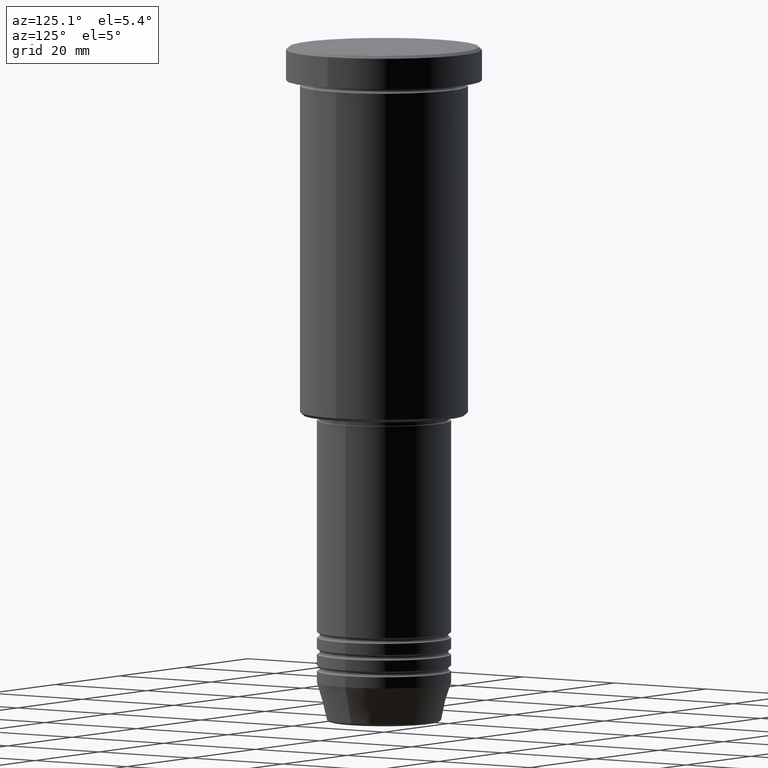
[diagram: clean part render]
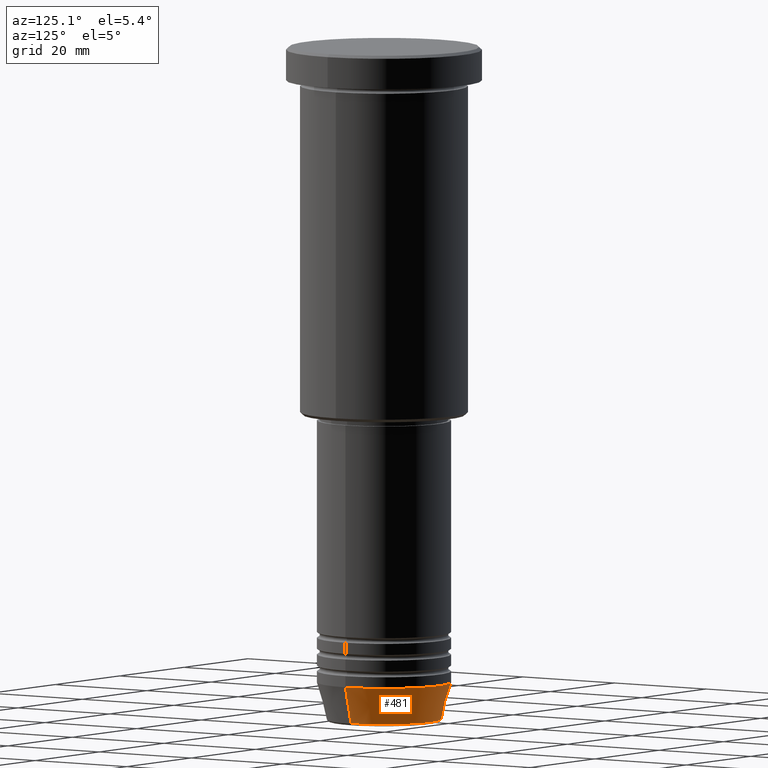
[diagram: same view with one face highlighted and labeled with its STEP entity id]
A machine part, auxiliary view. The second image highlights one B-rep face of the part: STEP entity #481.
In plain terms, the highlighted conical surface has half-angle 15 deg.
Its self-contained STEP definition (entity closure, byte-faithful):
#19 = EDGE_LOOP ( 'NONE', ( #179, #1097, #736, #366 ) ) ;
#69 = CIRCLE ( 'NONE', #243, 12.00000000000000000 ) ;
#179 = ORIENTED_EDGE ( 'NONE', *, *, #406, .T. ) ;
#191 = DIRECTION ( 'NONE',  ( -0.000000000000000000, -0.000000000000000000, 1.000000000000000000 ) ) ;
#197 = LINE ( 'NONE', #268, #548 ) ;
#210 = CARTESIAN_POINT ( 'NONE',  ( 0.000000000000000000, 0.000000000000000000, -120.6294095225512706 ) ) ;
#213 = CARTESIAN_POINT ( 'NONE',  ( 0.000000000000000000, 0.000000000000000000, -114.0000000000000142 ) ) ;
#234 = VERTEX_POINT ( 'NONE', #524 ) ;
#243 = AXIS2_PLACEMENT_3D ( 'NONE', #213, #857, #297 ) ;
#268 = CARTESIAN_POINT ( 'NONE',  ( -12.00000000000000000, 1.469576158976823947E-15, -114.0000000000000142 ) ) ;
#285 = CARTESIAN_POINT ( 'NONE',  ( 10.22365507213719305, 0.000000000000000000, -120.6294095225512706 ) ) ;
#297 = DIRECTION ( 'NONE',  ( 1.000000000000000000, 0.000000000000000000, 0.000000000000000000 ) ) ;
#316 = VERTEX_POINT ( 'NONE', #823 ) ;
#335 = EDGE_CURVE ( 'NONE', #316, #1002, #197, .T. ) ;
#366 = ORIENTED_EDGE ( 'NONE', *, *, #1146, .F. ) ;
#406 = EDGE_CURVE ( 'NONE', #874, #316, #580, .T. ) ;
#481 = ADVANCED_FACE ( 'NONE', ( #593 ), #806, .T. ) ;
#505 = EDGE_CURVE ( 'NONE', #234, #1002, #69, .T. ) ;
#524 = CARTESIAN_POINT ( 'NONE',  ( 12.00000000000000000, 0.000000000000000000, -114.0000000000000142 ) ) ;
#548 = VECTOR ( 'NONE', #906, 1000.000000000000000 ) ;
#557 = DIRECTION ( 'NONE',  ( 1.000000000000000000, 0.000000000000000000, 0.000000000000000000 ) ) ;
#580 = CIRCLE ( 'NONE', #671, 10.22365507213719305 ) ;
#593 = FACE_OUTER_BOUND ( 'NONE', #19, .T. ) ;
#671 = AXIS2_PLACEMENT_3D ( 'NONE', #210, #191, #557 ) ;
#736 = ORIENTED_EDGE ( 'NONE', *, *, #505, .F. ) ;
#792 = DIRECTION ( 'NONE',  ( 0.2588190451025213501, 0.000000000000000000, 0.9659258262890680902 ) ) ;
#806 = CONICAL_SURFACE ( 'NONE', #1067, 12.00000000000000000, 0.2617993877991500740 ) ;
#823 = CARTESIAN_POINT ( 'NONE',  ( -10.22365507213719305, 1.360806402472382744E-15, -120.6294095225512706 ) ) ;
#852 = CARTESIAN_POINT ( 'NONE',  ( -12.00000000000000000, 1.469576158976823947E-15, -114.0000000000000142 ) ) ;
#853 = CARTESIAN_POINT ( 'NONE',  ( 0.000000000000000000, 0.000000000000000000, -114.0000000000000142 ) ) ;
#857 = DIRECTION ( 'NONE',  ( -0.000000000000000000, -0.000000000000000000, 1.000000000000000000 ) ) ;
#874 = VERTEX_POINT ( 'NONE', #285 ) ;
#906 = DIRECTION ( 'NONE',  ( -0.2588190451025213501, 3.169619151431772337E-17, 0.9659258262890680902 ) ) ;
#940 = DIRECTION ( 'NONE',  ( 1.000000000000000000, 0.000000000000000000, 0.000000000000000000 ) ) ;
#960 = LINE ( 'NONE', #1058, #1082 ) ;
#1002 = VERTEX_POINT ( 'NONE', #852 ) ;
#1038 = DIRECTION ( 'NONE',  ( -0.000000000000000000, -0.000000000000000000, 1.000000000000000000 ) ) ;
#1058 = CARTESIAN_POINT ( 'NONE',  ( 12.00000000000000000, 0.000000000000000000, -114.0000000000000142 ) ) ;
#1067 = AXIS2_PLACEMENT_3D ( 'NONE', #853, #1038, #940 ) ;
#1082 = VECTOR ( 'NONE', #792, 1000.000000000000000 ) ;
#1097 = ORIENTED_EDGE ( 'NONE', *, *, #335, .T. ) ;
#1146 = EDGE_CURVE ( 'NONE', #874, #234, #960, .T. ) ;